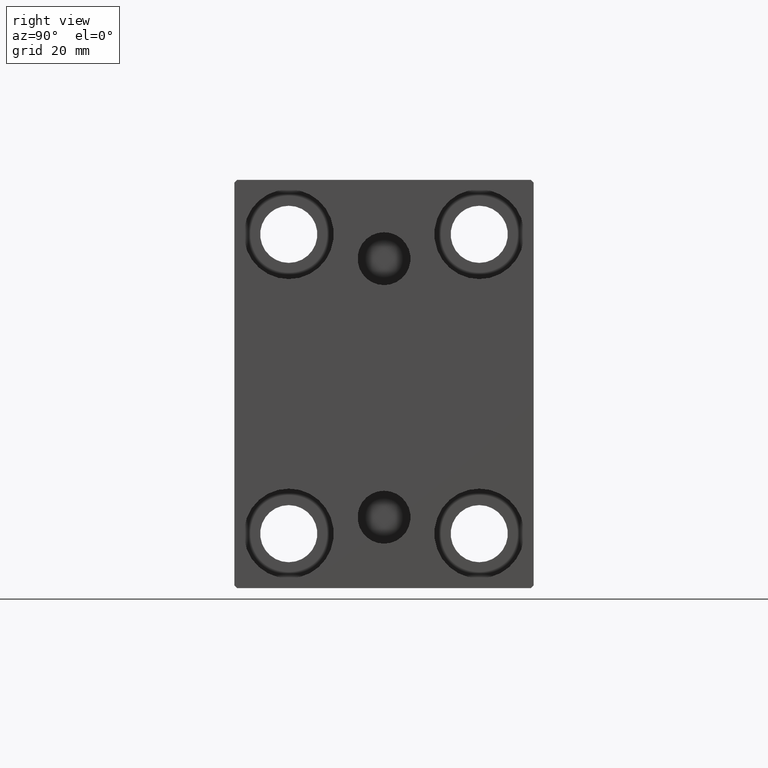
[diagram: clean part render]
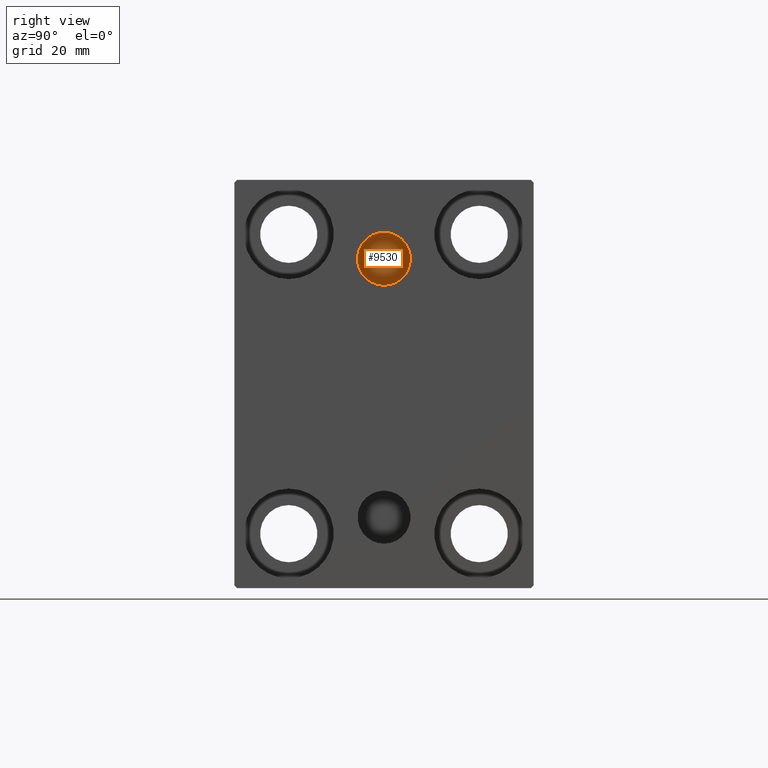
[diagram: same view with one face highlighted and labeled with its STEP entity id]
A machine part, right view. The second image highlights one B-rep face of the part: STEP entity #9530.
In plain terms, the highlighted planar face has unit normal (1, 0, 0).
Its self-contained STEP definition (entity closure, byte-faithful):
#960 = VERTEX_POINT ( 'NONE', #16703 ) ;
#2080 = DIRECTION ( 'NONE',  ( 0.000000000000000000, 0.000000000000000000, -1.000000000000000000 ) ) ;
#2677 = EDGE_CURVE ( 'NONE', #3786, #960, #4060, .T. ) ;
#2924 = ORIENTED_EDGE ( 'NONE', *, *, #26727, .T. ) ;
#3786 = VERTEX_POINT ( 'NONE', #9794 ) ;
#4060 = CIRCLE ( 'NONE', #12458, 4.859999999999999432 ) ;
#6062 = CARTESIAN_POINT ( 'NONE',  ( 75.00000000000001421, -3.571693674697836683E-15, 23.00000000000000711 ) ) ;
#9530 = ADVANCED_FACE ( 'NONE', ( #28316 ), #22326, .T. ) ;
#9794 = CARTESIAN_POINT ( 'NONE',  ( 75.00000000000001421, -3.571693674697836683E-15, 18.14000000000000767 ) ) ;
#9838 = CIRCLE ( 'NONE', #33747, 4.859999999999999432 ) ;
#10766 = DIRECTION ( 'NONE',  ( 1.000000000000000000, 0.000000000000000000, 0.000000000000000000 ) ) ;
#11779 = DIRECTION ( 'NONE',  ( 1.000000000000000000, 0.000000000000000000, 0.000000000000000000 ) ) ;
#12458 = AXIS2_PLACEMENT_3D ( 'NONE', #17153, #10766, #34337 ) ;
#13944 = EDGE_LOOP ( 'NONE', ( #21903, #2924 ) ) ;
#15744 = DIRECTION ( 'NONE',  ( 1.000000000000000000, 0.000000000000000000, 0.000000000000000000 ) ) ;
#16703 = CARTESIAN_POINT ( 'NONE',  ( 75.00000000000001421, -2.976515330312223406E-15, 27.86000000000000654 ) ) ;
#17153 = CARTESIAN_POINT ( 'NONE',  ( 75.00000000000001421, -3.571693674697836683E-15, 23.00000000000000711 ) ) ;
#19265 = DIRECTION ( 'NONE',  ( 0.000000000000000000, 0.000000000000000000, -1.000000000000000000 ) ) ;
#21903 = ORIENTED_EDGE ( 'NONE', *, *, #2677, .T. ) ;
#22326 = PLANE ( 'NONE',  #40430 ) ;
#26727 = EDGE_CURVE ( 'NONE', #960, #3786, #9838, .T. ) ;
#28316 = FACE_OUTER_BOUND ( 'NONE', #13944, .T. ) ;
#32255 = CARTESIAN_POINT ( 'NONE',  ( 75.00000000000001421, -3.571693674697836683E-15, 23.00000000000000711 ) ) ;
#33747 = AXIS2_PLACEMENT_3D ( 'NONE', #6062, #15744, #19265 ) ;
#34337 = DIRECTION ( 'NONE',  ( 0.000000000000000000, 0.000000000000000000, -1.000000000000000000 ) ) ;
#40430 = AXIS2_PLACEMENT_3D ( 'NONE', #32255, #11779, #2080 ) ;